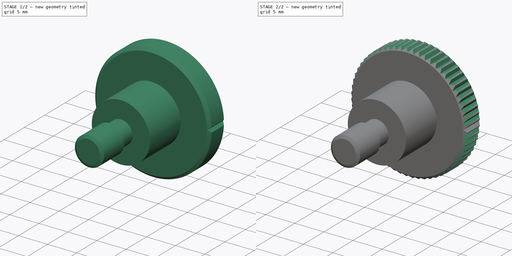
[diagram: build sequence overview — one tinted view per stage of 2, left to right]
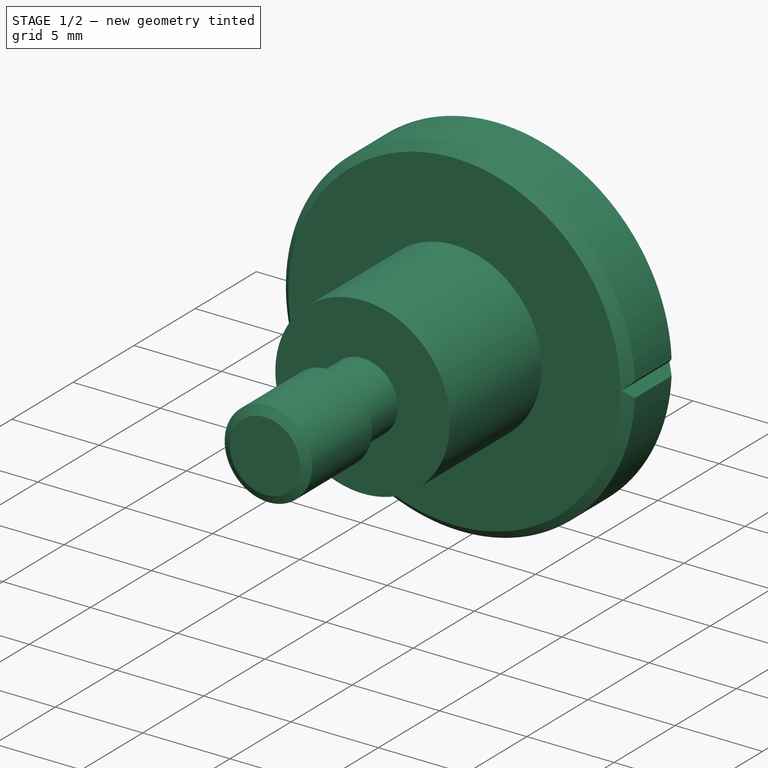
[diagram: stage 1 of 2 — iso view after this stage's code; geometry added in this stage tinted green]
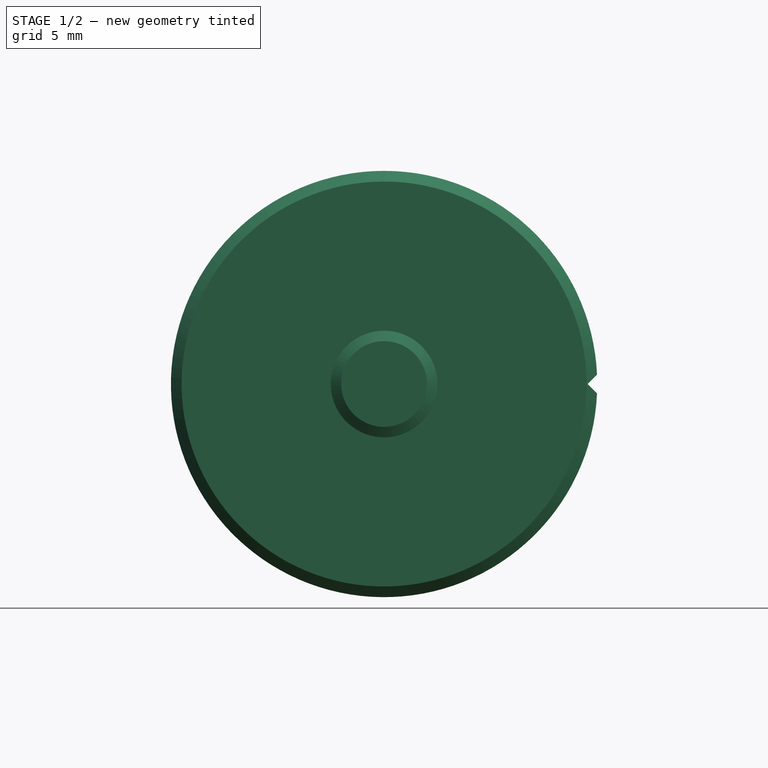
[diagram: stage 1 of 2 — front view after this stage's code; geometry added in this stage tinted green]
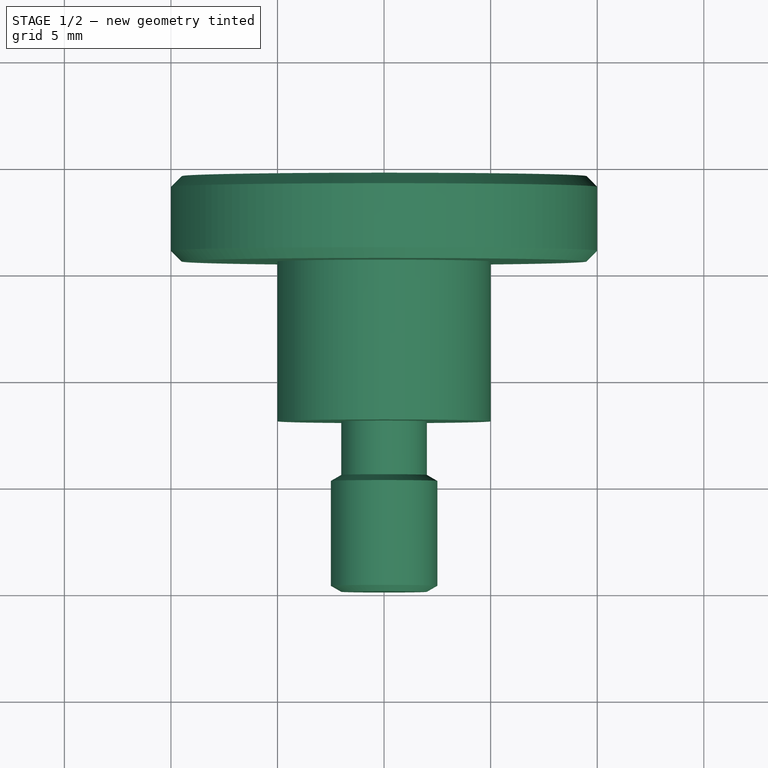
[diagram: stage 1 of 2 — top view after this stage's code; geometry added in this stage tinted green]
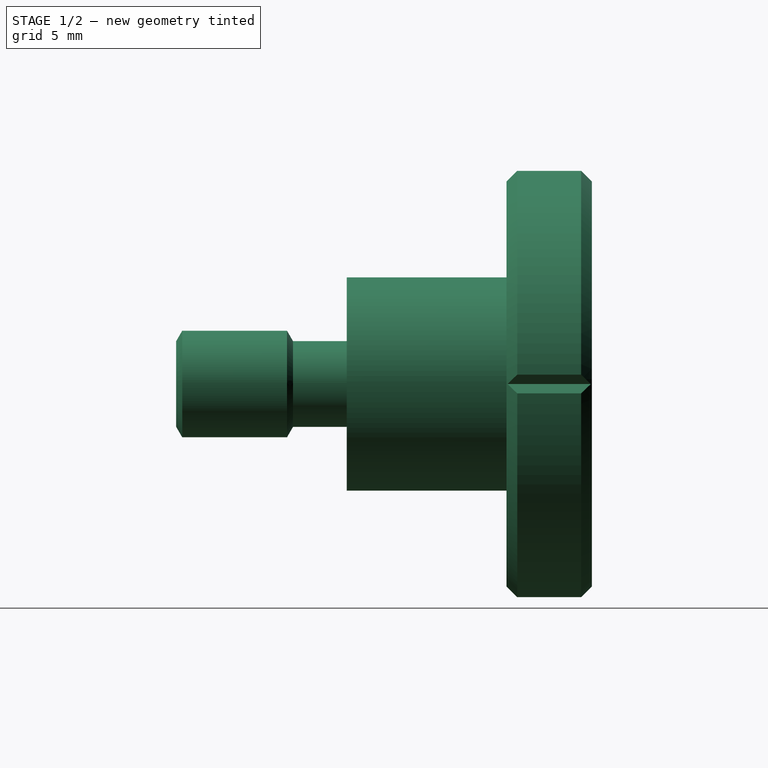
[diagram: stage 1 of 2 — right view after this stage's code; geometry added in this stage tinted green]
FCSTD DOCUMENT  (FreeCAD 0.15R4527 (Git))
Label: Raendelschraube_DIN_464-M5x8
License: All rights reserved
LicenseURL: http://en.wikipedia.org/wiki/All_rights_reserved
objects: Sketcher::SketchObject×2, PartDesign::Revolution×1, PartDesign::Pocket×1, PartDesign::PolarPattern×1
note: 7 computed .brp shape members not serialized (recipe doc carries the construction recipe); baked Part::Feature solids carry a one-line shape summary decoded from their .brp

FEATURE [Sketcher::SketchObject] Sketch
  Placement = pos=(0,0,0) rot=(0.57735,0.57735,0.57735;2.0944rad)
  sketch-geometry (14):
    g0: LineSegment StartX=0 StartY=0 StartZ=0 EndX=0 EndY=2.01 EndZ=0
    g1: LineSegment StartX=0 StartY=2.01 StartZ=0 EndX=0.282902 EndY=2.5 EndZ=0
    g2: LineSegment StartX=0.282902 StartY=2.5 StartZ=0 EndX=5.2 EndY=2.5 EndZ=0
    g3: LineSegment StartX=5.2 StartY=2.5 StartZ=0 EndX=5.4829 EndY=2.01 EndZ=0
    g4: LineSegment StartX=5.4829 StartY=2.01 StartZ=0 EndX=8 EndY=2.01 EndZ=0
    g5: LineSegment StartX=8 StartY=2.01 StartZ=0 EndX=8 EndY=5 EndZ=0
    g6: LineSegment StartX=8 StartY=5 StartZ=0 EndX=15.5 EndY=5 EndZ=0
    g7: LineSegment StartX=15.5 StartY=5 StartZ=0 EndX=15.5 EndY=9.5 EndZ=0
    g8: LineSegment StartX=15.5 StartY=9.5 StartZ=0 EndX=16 EndY=10 EndZ=0
    g9: LineSegment StartX=16 StartY=10 StartZ=0 EndX=19 EndY=10 EndZ=0
    g10: LineSegment StartX=19 StartY=10 StartZ=0 EndX=19.5 EndY=9.5 EndZ=0
    g11: LineSegment StartX=19.5 StartY=9.5 StartZ=0 EndX=19.5 EndY=0 EndZ=0
    g12: LineSegment StartX=19.5 StartY=0 StartZ=0 EndX=0 EndY=0 EndZ=0
    g13: LineSegment [constr] StartX=15.5 StartY=9.5 StartZ=0 EndX=19.5 EndY=9.5 EndZ=0
  constraints (40):
    c: Coincident(g-1,g0)
    c: PointOnObject(g0,g-2)
    c: Coincident(g0,g1)
    c: Coincident(g1,g2)
    c: Horizontal(g2)
    c: Coincident(g2,g3)
    c: Coincident(g3,g4)
    c: Horizontal(g4)
    c: Coincident(g4,g5)
    c: Vertical(g5)
    c: Coincident(g5,g6)
    c: Horizontal(g6)
    c: Coincident(g6,g7)
    c: Vertical(g7)
    c: Coincident(g7,g8)
    c: Coincident(g8,g9)
    c: Horizontal(g9)
    c: Coincident(g9,g10)
    c: Coincident(g10,g11)
    c: Vertical(g11)
    c: Coincident(g11,g12)
    c: Coincident(g12,g0)
    c: Horizontal(g12)
    c: Equal(g3,g1)
    c: PointOnObject(g0,g4)
    c: Angle(g1,g3) = 1.0472
    c: Equal(g8,g10)
    c: Coincident(g13,g7)
    c: Coincident(g13,g10)
    c: Horizontal(g13)
    c: DistanceX(g2,g4) = 2.8
    c: DistanceX(g5,g0) = -8
    c: DistanceY(g0) = 2.01
    c: DistanceY(g-1,g1) = 2.5
    c: DistanceX(g5,g10) = 11.5
    c: DistanceX(g13) = 4
    c: DistanceX(g10) = 0.5
    c: DistanceY(g10) = -0.5
    c: DistanceY(g5,g11) = -5
    c: DistanceY(g9,g11) = -10
FEATURE [PartDesign::Revolution] Revolution
  Angle = 360
  Axis = (0,1,0)
  Base = (0,0,0)
  Placement = pos=(0,0,0) rot=(0.57735,0.57735,0.57735;2.0944rad)
  ReferenceAxis = -> Sketch [H_Axis]
  Sketch = -> Sketch
FEATURE [Sketcher::SketchObject] Sketch001
  Placement = pos=(0,19.5,0) rot=(0.57735,0.57735,0.57735;4.18879rad)
  Support = -> Revolution [Face12]
  sketch-geometry (3):
    g0: LineSegment StartX=-0.5 StartY=10.05 StartZ=0 EndX=0 EndY=9.55 EndZ=0
    g1: LineSegment StartX=0 StartY=9.55 StartZ=0 EndX=0.5 EndY=10.05 EndZ=0
    g2: LineSegment StartX=0.5 StartY=10.05 StartZ=0 EndX=-0.5 EndY=10.05 EndZ=0
  constraints (9):
    c: PointOnObject(g0,g-2)
    c: Coincident(g0,g1)
    c: Coincident(g1,g2)
    c: Coincident(g2,g0)
    c: Horizontal(g2)
    c: Equal(g1,g0)
    c: Angle(g1,g0) = 1.5708
    c: DistanceY(g-1,g0) = 9.55
    c: DistanceY(g-1,g1) = 10.05
FEATURE [PartDesign::Pocket] Pocket
  Length = 5
  Placement = pos=(0,0,0) rot=(0.57735,0.57735,0.57735;2.0944rad)
  Sketch = -> Sketch001
  Type = 1
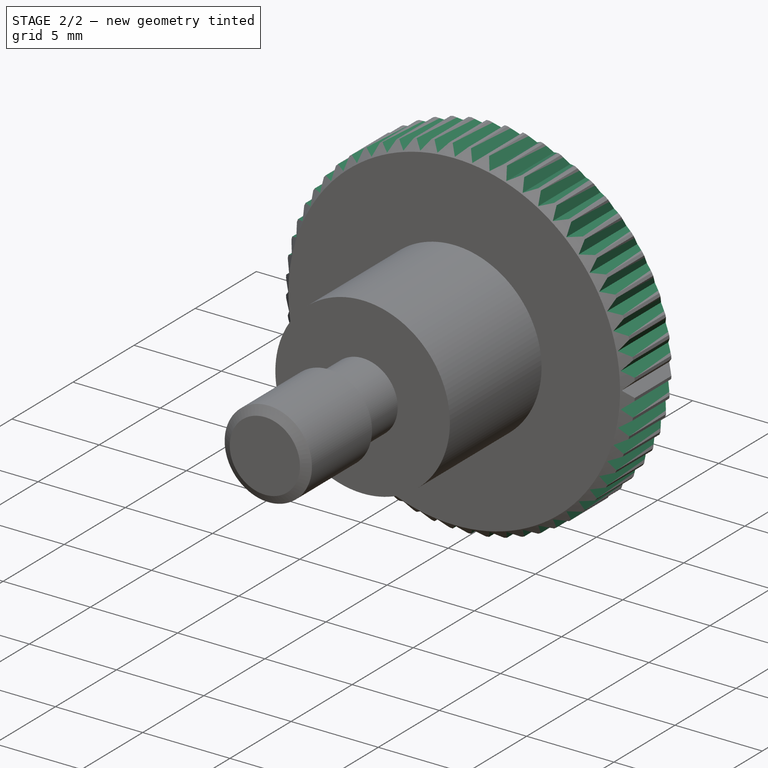
[diagram: stage 2 of 2 — iso view after this stage's code; geometry added in this stage tinted green]
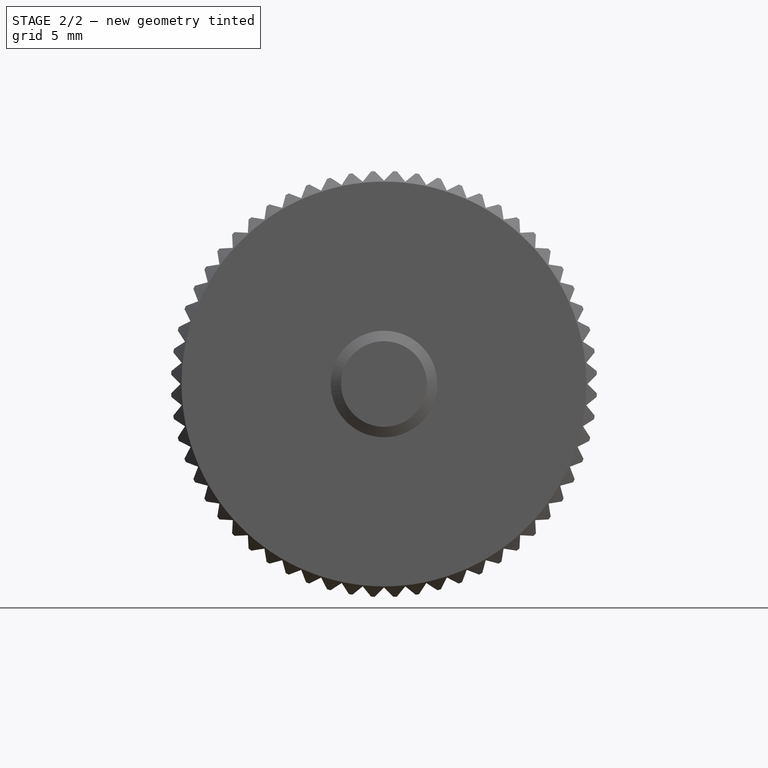
[diagram: stage 2 of 2 — front view after this stage's code; geometry added in this stage tinted green]
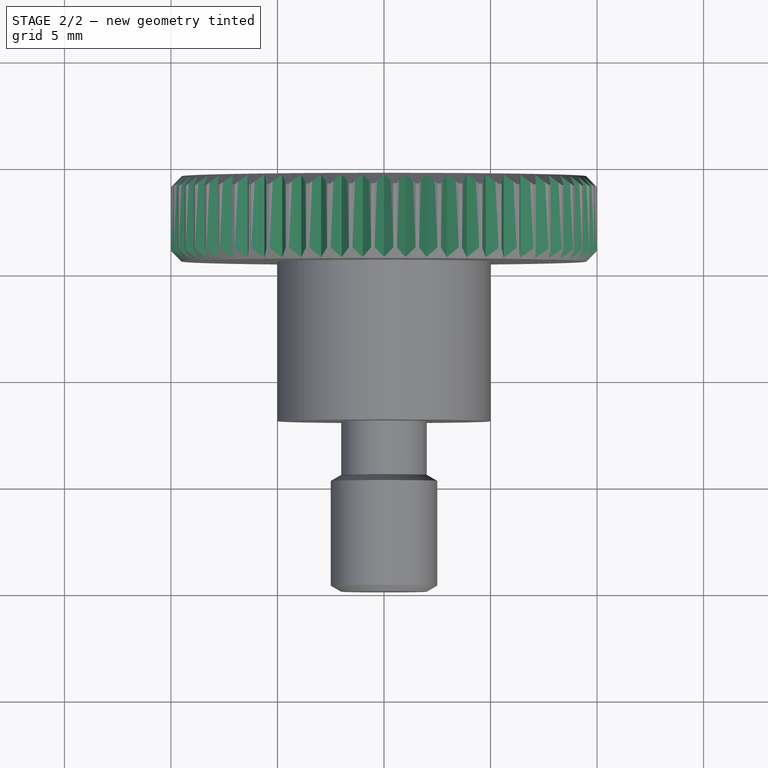
[diagram: stage 2 of 2 — top view after this stage's code; geometry added in this stage tinted green]
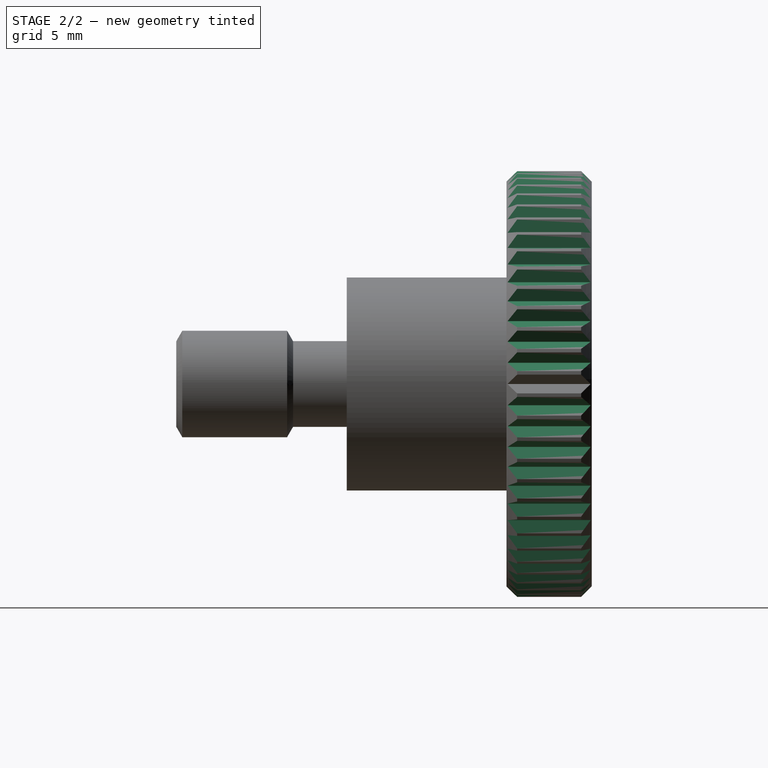
[diagram: stage 2 of 2 — right view after this stage's code; geometry added in this stage tinted green]
FEATURE [PartDesign::PolarPattern] PolarPattern
  Angle = 360
  Axis = -> Sketch001 [N_Axis]
  Occurrences = 60
  Originals = -> [Pocket]
  Placement = pos=(0,0,0) rot=(0.57735,0.57735,0.57735;2.0944rad)
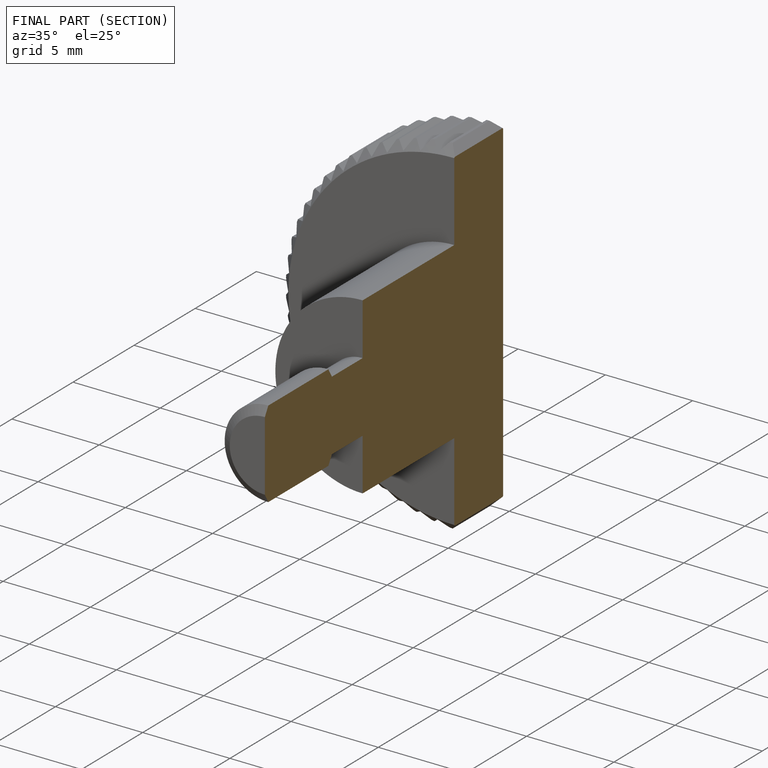
[diagram: finished part — half-section view (interior)]
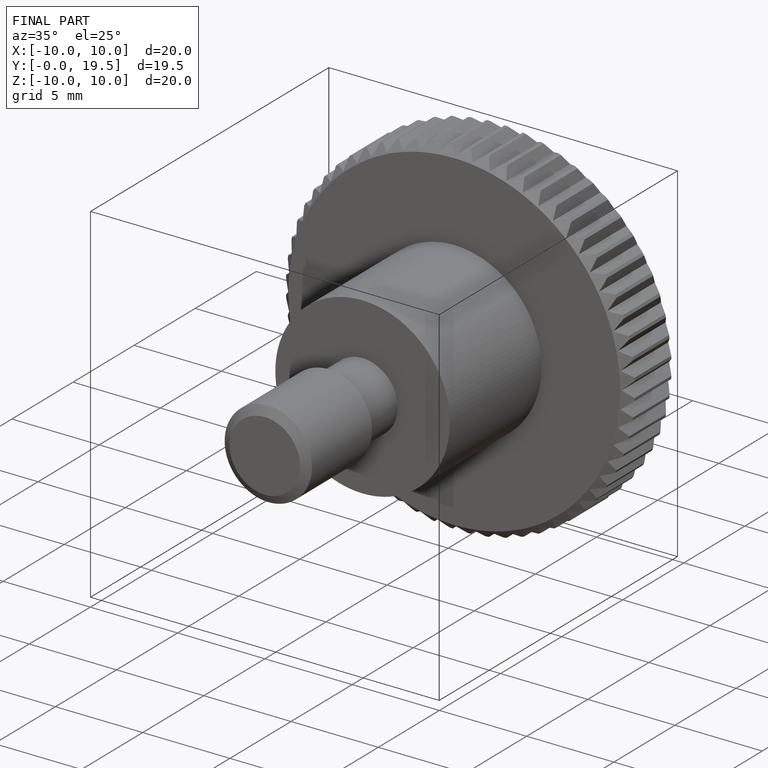
[diagram: finished part — iso view with bounding-box wireframe]
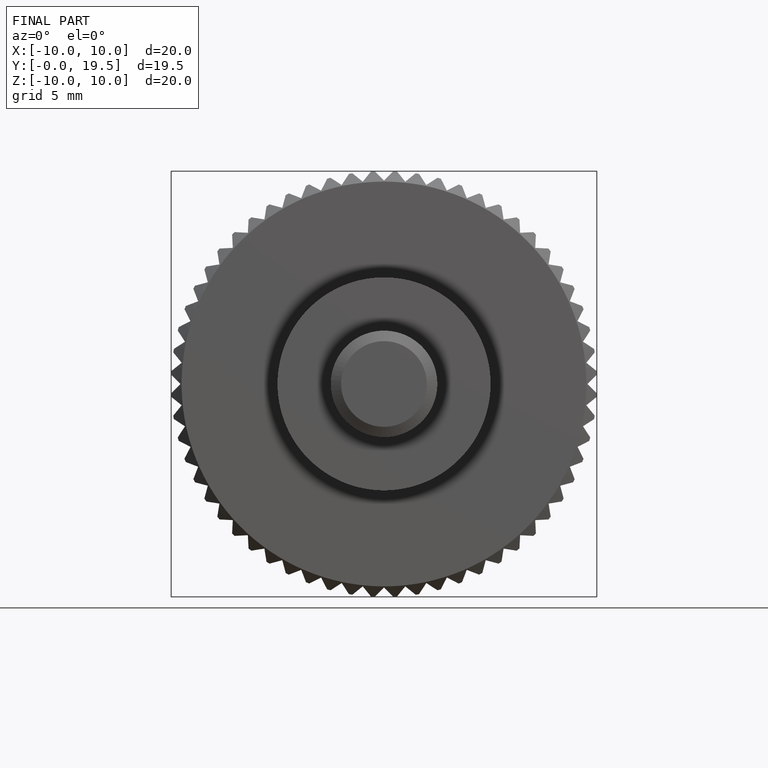
[diagram: finished part — front view with bounding-box wireframe]
